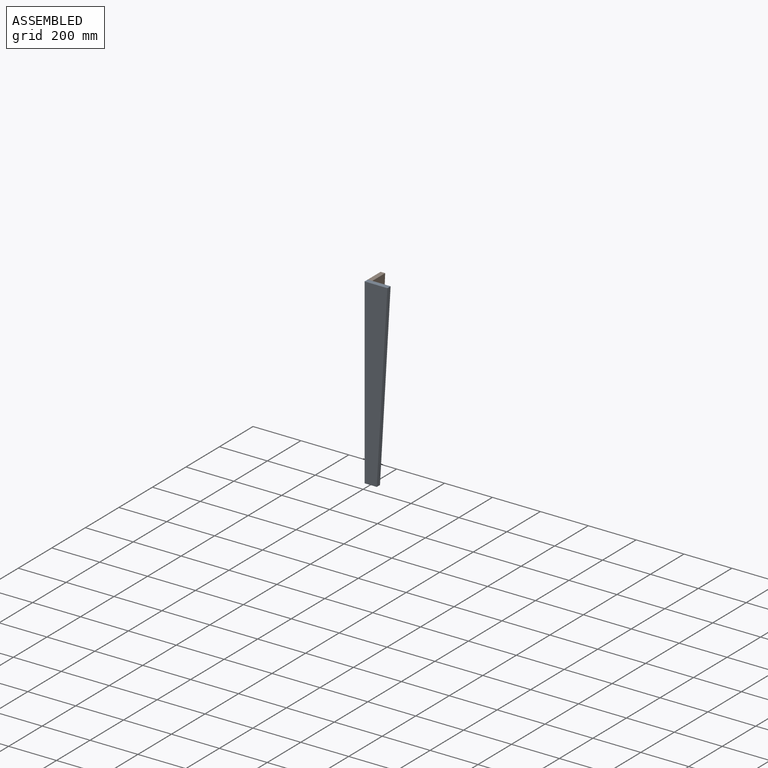
[diagram: assembled view]
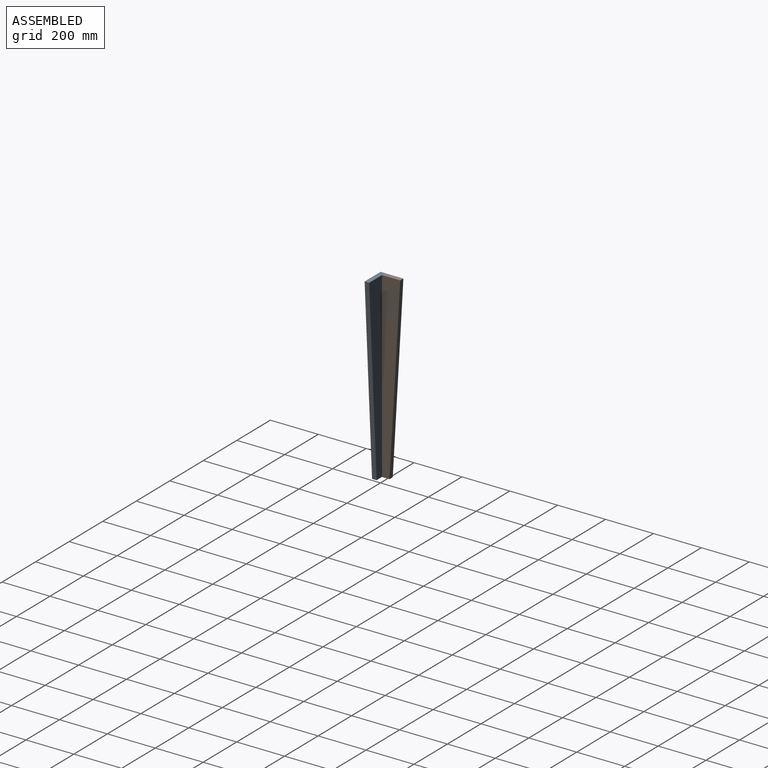
[diagram: assembled view, second angle]
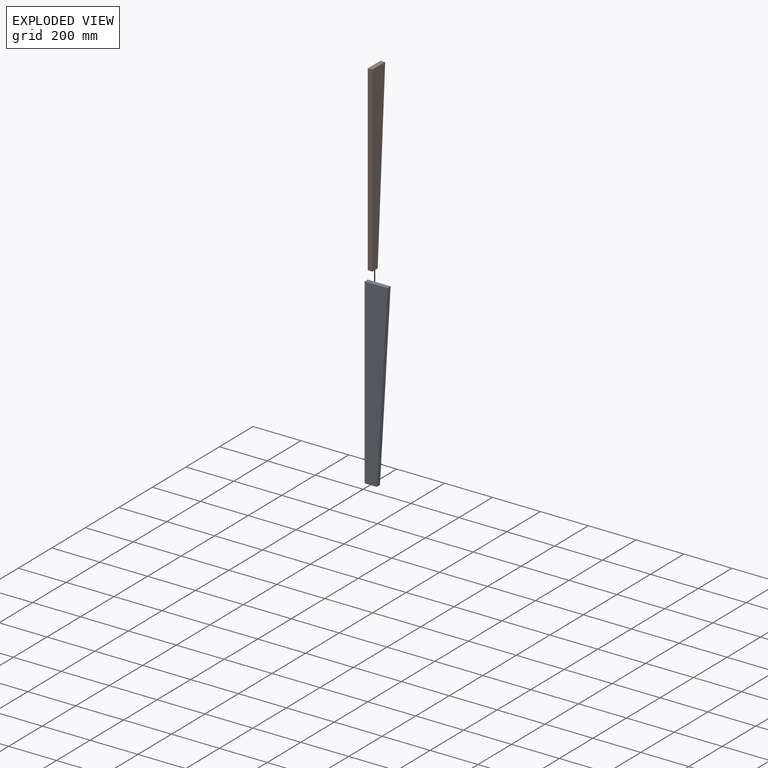
[diagram: exploded view]
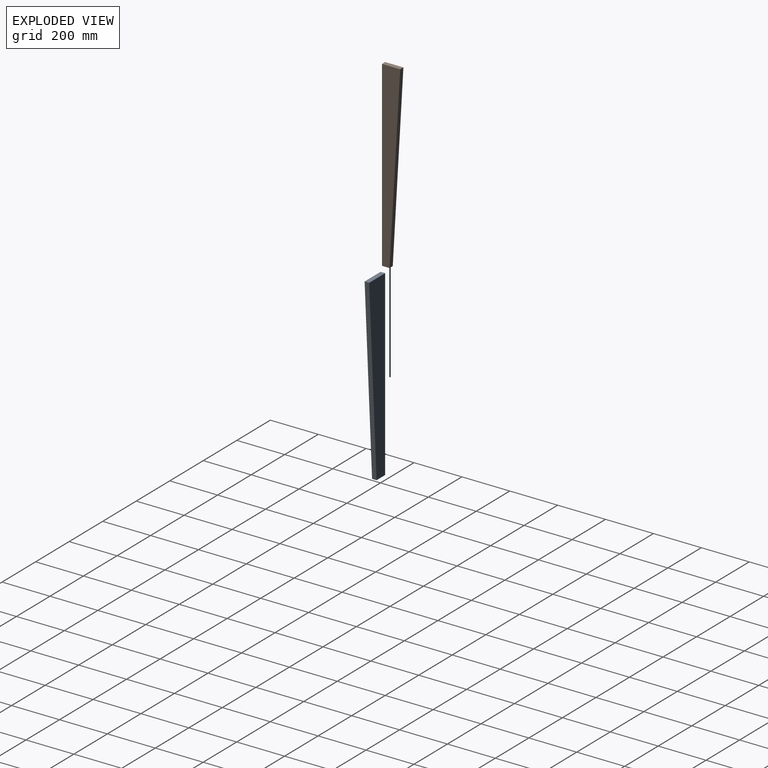
[diagram: exploded view, second angle]
ASSEMBLY  parts=2 mates=3
PART A: 6 faces, bbox 95.3x19.1x762 mm
  f0: plane 762x19.05mm, normal (-1,0,0), area 14516.1mm2, adj f1,f3,f4,f5
  f1: plane 50.8x19.05mm, normal (0,0,-1), area 967.7mm2, adj f0,f2,f4,f5
  f2: plane 762x44.45mm, normal (1,0,-0.06), area 14540.8mm2, adj f1,f3,f4,f5
  f3: plane 95.25x19.05mm, normal (0,0,1), area 1814.5mm2, adj f0,f2,f4,f5
  f4: plane 762x95.25mm, normal (0,-1,0), area 55645.1mm2, adj f0,f1,f2,f3
  f5: plane 762x95.25mm, normal (0,1,0), area 55645.1mm2, adj f0,f1,f2,f3
PART B: 6 faces, bbox 76.2x19.1x762 mm
  f0: plane 762x19.05mm, normal (-1,0,0), area 14516.1mm2, adj f1,f3,f4,f5
  f1: plane 31.75x19.05mm, normal (0,0,-1), area 604.8mm2, adj f0,f2,f4,f5
  f2: plane 762x44.45mm, normal (1,0,-0.06), area 14540.8mm2, adj f1,f3,f4,f5
  f3: plane 76.2x19.05mm, normal (0,0,1), area 1451.6mm2, adj f0,f2,f4,f5
  f4: plane 762x76.2mm, normal (0,-1,0), area 41129mm2, adj f0,f1,f2,f3
  f5: plane 762x76.2mm, normal (0,1,0), area 41129mm2, adj f0,f1,f2,f3
PLACE A at identity fixed
PLACE B rot(axis=(0,0,1),90deg) t=(0,-285.26,0)mm
MATE planar B.f3 <-> A.f3  axis (0,0,1) through (0,0,762)mm
MATE planar B.f5 <-> A.f0  axis (-1,0,0) through (0,0,762)mm
MATE planar B.f0 <-> A.f5  axis (0,-1,0) through (9.53,0,762)mm
